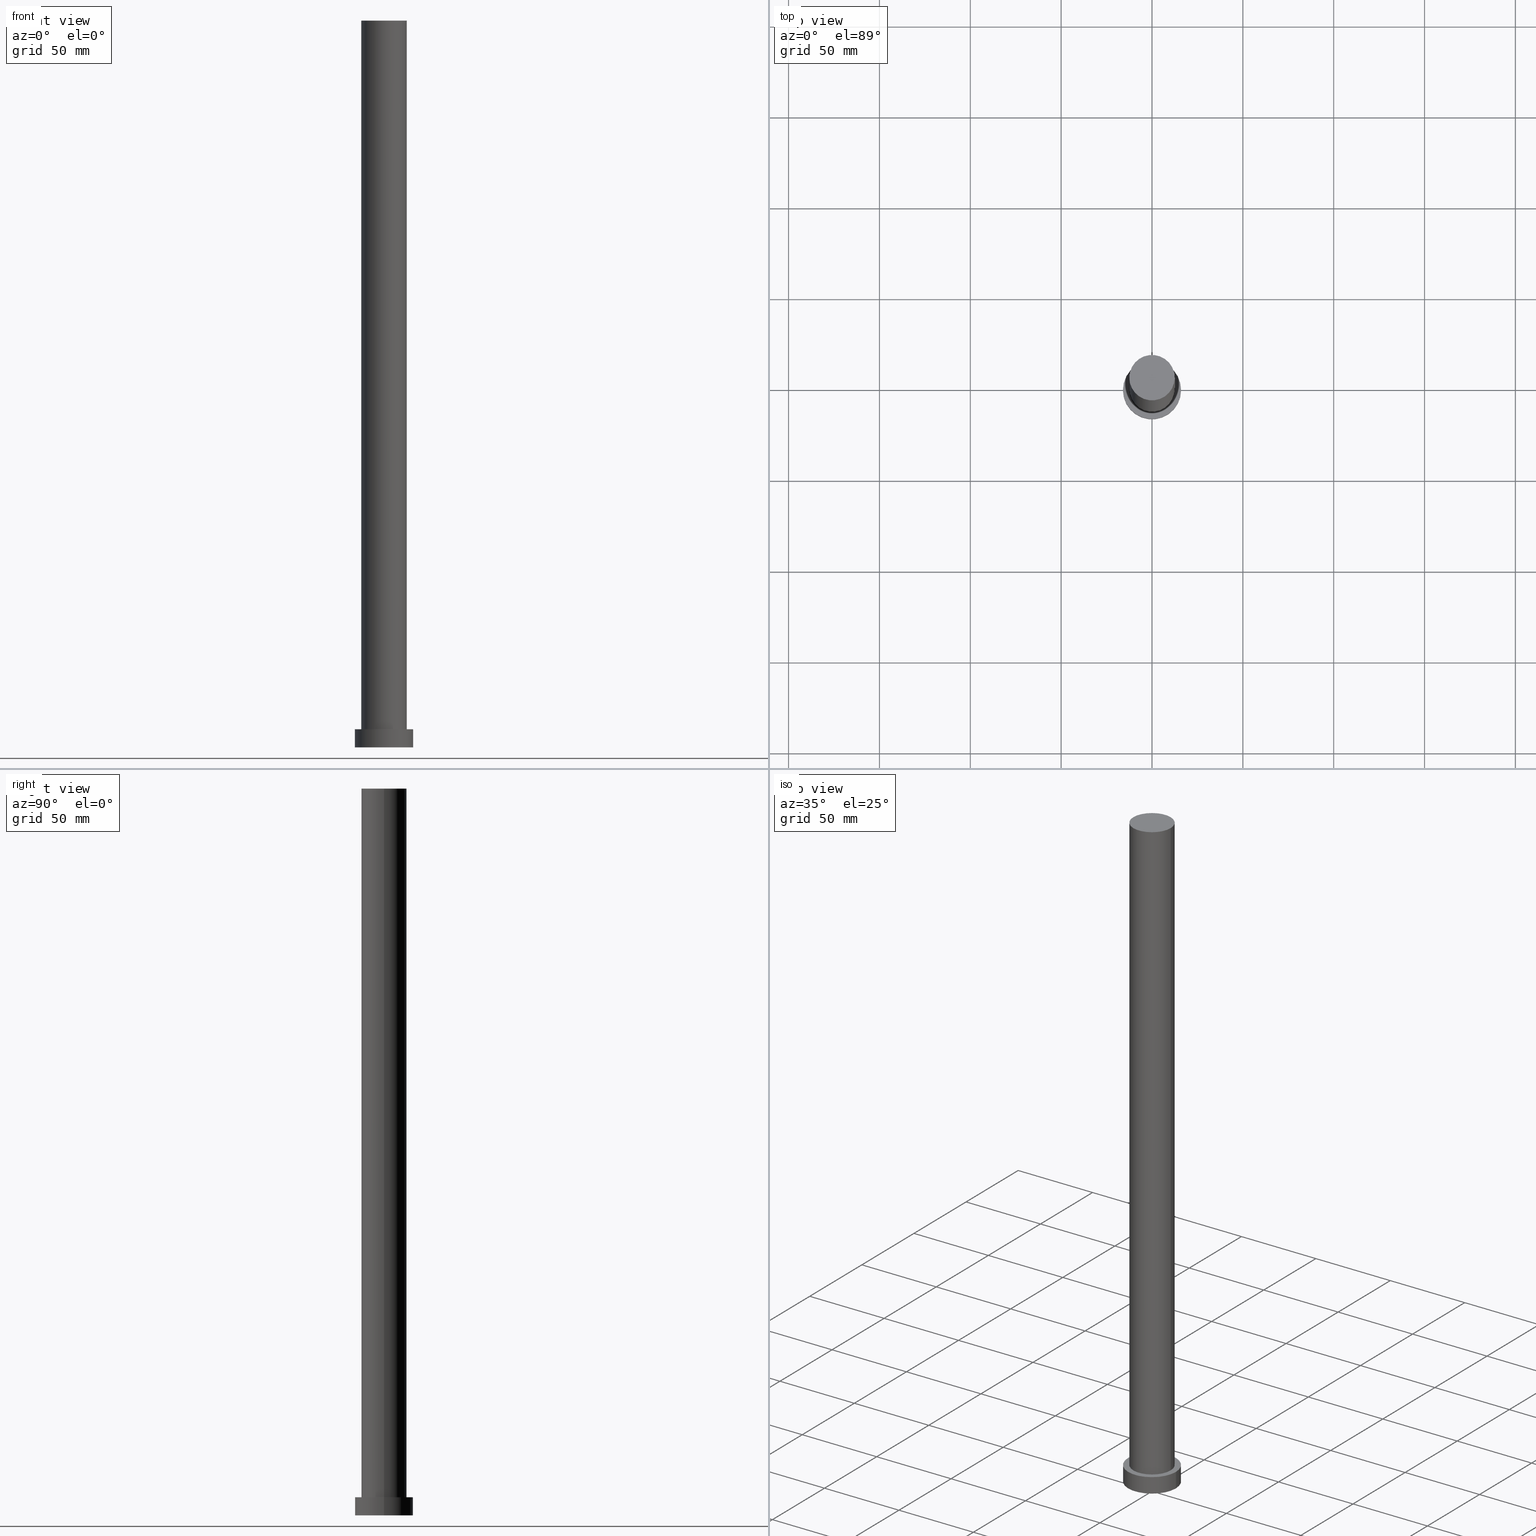
[diagram: canonical four-view strip — front | top / right | iso, engineering-drawing reading convention]
A machine part, canonical four-view strip (front | top / right | iso — engineering-drawing reading convention). The complete STEP part file that produces these views, byte-faithful:
ISO-10303-21;
HEADER;
FILE_DESCRIPTION (( 'STEP AP203' ),
    '1' );
FILE_NAME ('c39b.STEP',
    '2023-02-12T10:28:45',
    ( '' ),
    ( '' ),
    'SwSTEP 2.0',
    'SolidWorks 2019',
    '' );
FILE_SCHEMA (( 'CONFIG_CONTROL_DESIGN' ));
ENDSEC;

DATA;
#1 = ORIENTED_EDGE ( 'NONE', *, *, #134, .F. ) ;
#2 = EDGE_CURVE ( 'NONE', #248, #158, #169, .T. ) ;
#3 = APPROVAL_ROLE ( '' ) ;
#4 = ORIENTED_EDGE ( 'NONE', *, *, #129, .T. ) ;
#5 =( GEOMETRIC_REPRESENTATION_CONTEXT ( 3 ) GLOBAL_UNCERTAINTY_ASSIGNED_CONTEXT ( ( #172 ) ) GLOBAL_UNIT_ASSIGNED_CONTEXT ( ( #126, #39, #219 ) ) REPRESENTATION_CONTEXT ( 'NONE', 'WORKASPACE' ) );
#6 = DIRECTION ( 'NONE',  ( 1.000000000000000000, 0.000000000000000000, -0.000000000000000000 ) ) ;
#7 = APPROVAL_DATE_TIME ( #63, #14 ) ;
#8 = DIRECTION ( 'NONE',  ( 0.000000000000000000, 0.000000000000000000, 1.000000000000000000 ) ) ;
#9 = DIRECTION ( 'NONE',  ( 0.000000000000000000, 0.000000000000000000, 1.000000000000000000 ) ) ;
#10 = EDGE_CURVE ( 'NONE', #148, #158, #26, .T. ) ;
#11 = VERTEX_POINT ( 'NONE', #121 ) ;
#12 = ORIENTED_EDGE ( 'NONE', *, *, #147, .F. ) ;
#13 = DESIGN_CONTEXT ( 'detailed design', #137, 'design' ) ;
#14 = APPROVAL ( #138, 'NEUR�EN�' ) ;
#15 = DIRECTION ( 'NONE',  ( 1.000000000000000000, 0.000000000000000000, 0.000000000000000000 ) ) ;
#16 = DIRECTION ( 'NONE',  ( 1.000000000000000000, 0.000000000000000000, 0.000000000000000000 ) ) ;
#17 = DIRECTION ( 'NONE',  ( -1.000000000000000000, 0.000000000000000000, 0.000000000000000000 ) ) ;
#18 = LOCAL_TIME ( 11, 28, 45.00000000000000000, #40 ) ;
#19 = CC_DESIGN_PERSON_AND_ORGANIZATION_ASSIGNMENT ( #133, #115, ( #120 ) ) ;
#20 = ORIENTED_EDGE ( 'NONE', *, *, #47, .F. ) ;
#21 = PRODUCT ( 'c39b', 'c39b', '', ( #182 ) ) ;
#22 = ORIENTED_EDGE ( 'NONE', *, *, #79, .T. ) ;
#23 = PERSON_AND_ORGANIZATION_ROLE ( 'design_owner' ) ;
#24 = CARTESIAN_POINT ( 'NONE',  ( 0.000000000000000000, 0.000000000000000000, 400.0000000000000000 ) ) ;
#25 = VERTEX_POINT ( 'NONE', #170 ) ;
#26 = CIRCLE ( 'NONE', #54, 12.50000000000000000 ) ;
#27 = DIRECTION ( 'NONE',  ( -0.000000000000000000, -0.000000000000000000, -1.000000000000000000 ) ) ;
#28 = EDGE_CURVE ( 'NONE', #193, #246, #208, .T. ) ;
#29 = AXIS2_PLACEMENT_3D ( 'NONE', #200, #253, #199 ) ;
#30 = ORIENTED_EDGE ( 'NONE', *, *, #60, .T. ) ;
#31 = CARTESIAN_POINT ( 'NONE',  ( 0.000000000000000000, 0.000000000000000000, 10.00000000000000000 ) ) ;
#32 = AXIS2_PLACEMENT_3D ( 'NONE', #70, #151, #52 ) ;
#33 = DIRECTION ( 'NONE',  ( 0.000000000000000000, 0.000000000000000000, 1.000000000000000000 ) ) ;
#34 = CC_DESIGN_PERSON_AND_ORGANIZATION_ASSIGNMENT ( #76, #23, ( #21 ) ) ;
#35 = CARTESIAN_POINT ( 'NONE',  ( 0.000000000000000000, 0.000000000000000000, 0.000000000000000000 ) ) ;
#36 = AXIS2_PLACEMENT_3D ( 'NONE', #91, #33, #109 ) ;
#37 = LINE ( 'NONE', #125, #116 ) ;
#38 = DIRECTION ( 'NONE',  ( -0.000000000000000000, -0.000000000000000000, -1.000000000000000000 ) ) ;
#39 =( NAMED_UNIT ( * ) PLANE_ANGLE_UNIT ( ) SI_UNIT ( $, .RADIAN. ) );
#40 = COORDINATED_UNIVERSAL_TIME_OFFSET ( 1, 0, .AHEAD. ) ;
#41 = CC_DESIGN_PERSON_AND_ORGANIZATION_ASSIGNMENT ( #59, #177, ( #107 ) ) ;
#42 = EDGE_LOOP ( 'NONE', ( #181, #65 ) ) ;
#43 = FACE_OUTER_BOUND ( 'NONE', #139, .T. ) ;
#44 = PLANE ( 'NONE',  #160 ) ;
#45 = MANIFOLD_SOLID_BREP ( 'P�idat vysunut�m3', #132 ) ;
#46 = ORIENTED_EDGE ( 'NONE', *, *, #28, .T. ) ;
#47 = EDGE_CURVE ( 'NONE', #158, #148, #207, .T. ) ;
#48 = DIRECTION ( 'NONE',  ( 0.000000000000000000, 0.000000000000000000, 1.000000000000000000 ) ) ;
#49 = ORIENTED_EDGE ( 'NONE', *, *, #161, .T. ) ;
#50 = DIRECTION ( 'NONE',  ( 1.000000000000000000, 0.000000000000000000, 0.000000000000000000 ) ) ;
#51 = CARTESIAN_POINT ( 'NONE',  ( -16.00000000000000000, 0.000000000000000000, 0.000000000000000000 ) ) ;
#52 = DIRECTION ( 'NONE',  ( -1.000000000000000000, 0.000000000000000000, 0.000000000000000000 ) ) ;
#53 = CC_DESIGN_PERSON_AND_ORGANIZATION_ASSIGNMENT ( #223, #168, ( #120 ) ) ;
#54 = AXIS2_PLACEMENT_3D ( 'NONE', #218, #9, #249 ) ;
#55 = DIRECTION ( 'NONE',  ( 0.000000000000000000, 0.000000000000000000, 1.000000000000000000 ) ) ;
#56 = LOCAL_TIME ( 11, 28, 45.00000000000000000, #144 ) ;
#57 = APPROVAL_DATE_TIME ( #155, #245 ) ;
#58 = CALENDAR_DATE ( 2023, 12, 2 ) ;
#59 = PERSON_AND_ORGANIZATION ( #154, #171 ) ;
#60 = EDGE_CURVE ( 'NONE', #246, #193, #237, .T. ) ;
#61 = COORDINATED_UNIVERSAL_TIME_OFFSET ( 1, 0, .AHEAD. ) ;
#62 = CARTESIAN_POINT ( 'NONE',  ( 0.000000000000000000, 0.000000000000000000, 0.000000000000000000 ) ) ;
#63 = DATE_AND_TIME ( #216, #56 ) ;
#64 = DIRECTION ( 'NONE',  ( 1.000000000000000000, 0.000000000000000000, 0.000000000000000000 ) ) ;
#65 = ORIENTED_EDGE ( 'NONE', *, *, #28, .F. ) ;
#66 = DATE_TIME_ROLE ( 'classification_date' ) ;
#67 = EDGE_LOOP ( 'NONE', ( #131, #75, #46, #124 ) ) ;
#68 = APPROVAL_PERSON_ORGANIZATION ( #166, #14, #140 ) ;
#69 = DIRECTION ( 'NONE',  ( 1.000000000000000000, 0.000000000000000000, -0.000000000000000000 ) ) ;
#70 = CARTESIAN_POINT ( 'NONE',  ( 0.000000000000000000, 0.000000000000000000, 400.0000000000000000 ) ) ;
#71 = DIRECTION ( 'NONE',  ( -0.000000000000000000, -0.000000000000000000, -1.000000000000000000 ) ) ;
#72 = CARTESIAN_POINT ( 'NONE',  ( -12.50000000000000000, 0.000000000000000000, 400.0000000000000000 ) ) ;
#73 = CARTESIAN_POINT ( 'NONE',  ( -12.50000000000000000, 0.000000000000000000, 10.00000000000000000 ) ) ;
#74 = CALENDAR_DATE ( 2023, 12, 2 ) ;
#75 = ORIENTED_EDGE ( 'NONE', *, *, #147, .T. ) ;
#76 = PERSON_AND_ORGANIZATION ( #154, #171 ) ;
#77 = DATE_AND_TIME ( #113, #18 ) ;
#78 = ORIENTED_EDGE ( 'NONE', *, *, #161, .F. ) ;
#79 = EDGE_CURVE ( 'NONE', #11, #246, #88, .T. ) ;
#80 = AXIS2_PLACEMENT_3D ( 'NONE', #35, #196, #205 ) ;
#81 = DIRECTION ( 'NONE',  ( -0.000000000000000000, -0.000000000000000000, -1.000000000000000000 ) ) ;
#82 = ADVANCED_FACE ( 'NONE', ( #85 ), #142, .T. ) ;
#83 = AXIS2_PLACEMENT_3D ( 'NONE', #252, #71, #17 ) ;
#84 = ORIENTED_EDGE ( 'NONE', *, *, #134, .T. ) ;
#85 = FACE_OUTER_BOUND ( 'NONE', #123, .T. ) ;
#86 = AXIS2_PLACEMENT_3D ( 'NONE', #31, #191, #64 ) ;
#87 = VERTEX_POINT ( 'NONE', #250 ) ;
#88 = LINE ( 'NONE', #145, #118 ) ;
#89 = ADVANCED_FACE ( 'NONE', ( #43 ), #229, .T. ) ;
#90 = CYLINDRICAL_SURFACE ( 'NONE', #32, 12.50000000000000000 ) ;
#91 = CARTESIAN_POINT ( 'NONE',  ( 0.000000000000000000, 0.000000000000000000, 10.00000000000000000 ) ) ;
#92 = CARTESIAN_POINT ( 'NONE',  ( 12.50000000000000000, 1.530808498934191521E-15, 10.00000000000000000 ) ) ;
#93 = FACE_OUTER_BOUND ( 'NONE', #167, .T. ) ;
#94 = CIRCLE ( 'NONE', #234, 12.50000000000000000 ) ;
#95 = PERSON_AND_ORGANIZATION ( #154, #171 ) ;
#96 = EDGE_LOOP ( 'NONE', ( #1, #4, #206, #119 ) ) ;
#97 = AXIS2_PLACEMENT_3D ( 'NONE', #127, #198, #16 ) ;
#98 = ADVANCED_FACE ( 'NONE', ( #188, #228 ), #44, .T. ) ;
#99 = AXIS2_PLACEMENT_3D ( 'NONE', #152, #235, #15 ) ;
#100 = DIRECTION ( 'NONE',  ( 0.000000000000000000, 0.000000000000000000, 1.000000000000000000 ) ) ;
#101 = AXIS2_PLACEMENT_3D ( 'NONE', #194, #226, #213 ) ;
#102 = CARTESIAN_POINT ( 'NONE',  ( 0.000000000000000000, 0.000000000000000000, 0.000000000000000000 ) ) ;
#103 = PERSON_AND_ORGANIZATION ( #154, #171 ) ;
#104 = ORIENTED_EDGE ( 'NONE', *, *, #225, .T. ) ;
#105 = FACE_OUTER_BOUND ( 'NONE', #96, .T. ) ;
#106 = VECTOR ( 'NONE', #38, 1000.000000000000000 ) ;
#107 = PRODUCT_DEFINITION ( 'NEZN�M�', '', #120, #13 ) ;
#108 = DIRECTION ( 'NONE',  ( 1.000000000000000000, 0.000000000000000000, 0.000000000000000000 ) ) ;
#109 = DIRECTION ( 'NONE',  ( 1.000000000000000000, 0.000000000000000000, 0.000000000000000000 ) ) ;
#110 = DIRECTION ( 'NONE',  ( -0.000000000000000000, -0.000000000000000000, -1.000000000000000000 ) ) ;
#111 = CARTESIAN_POINT ( 'NONE',  ( 12.50000000000000000, 1.530808498934191521E-15, 400.0000000000000000 ) ) ;
#112 = DIRECTION ( 'NONE',  ( 0.000000000000000000, 0.000000000000000000, 1.000000000000000000 ) ) ;
#113 = CALENDAR_DATE ( 2023, 12, 2 ) ;
#114 = ORIENTED_EDGE ( 'NONE', *, *, #189, .T. ) ;
#115 = PERSON_AND_ORGANIZATION_ROLE ( 'creator' ) ;
#116 = VECTOR ( 'NONE', #110, 1000.000000000000000 ) ;
#117 = ADVANCED_FACE ( 'NONE', ( #105 ), #90, .T. ) ;
#118 = VECTOR ( 'NONE', #27, 1000.000000000000000 ) ;
#119 = ORIENTED_EDGE ( 'NONE', *, *, #2, .F. ) ;
#120 = PRODUCT_DEFINITION_FORMATION_WITH_SPECIFIED_SOURCE ( 'LIBOVOLN�', '', #21, .NOT_KNOWN. ) ;
#121 = CARTESIAN_POINT ( 'NONE',  ( -16.00000000000000000, 0.000000000000000000, 10.00000000000000000 ) ) ;
#122 = ORIENTED_EDGE ( 'NONE', *, *, #129, .F. ) ;
#123 = EDGE_LOOP ( 'NONE', ( #12, #231, #22, #30 ) ) ;
#124 = ORIENTED_EDGE ( 'NONE', *, *, #79, .F. ) ;
#125 = CARTESIAN_POINT ( 'NONE',  ( 16.00000000000000000, 1.959434878635765131E-15, 10.00000000000000000 ) ) ;
#126 =( LENGTH_UNIT ( ) NAMED_UNIT ( * ) SI_UNIT ( .MILLI., .METRE. ) );
#127 = CARTESIAN_POINT ( 'NONE',  ( 0.000000000000000000, 0.000000000000000000, 10.00000000000000000 ) ) ;
#128 = FACE_OUTER_BOUND ( 'NONE', #67, .T. ) ;
#129 = EDGE_CURVE ( 'NONE', #25, #148, #251, .T. ) ;
#130 = CC_DESIGN_APPROVAL ( #195, ( #107 ) ) ;
#131 = ORIENTED_EDGE ( 'NONE', *, *, #225, .F. ) ;
#132 = CLOSED_SHELL ( 'NONE', ( #117, #214, #82, #98, #178, #153, #89 ) ) ;
#133 = PERSON_AND_ORGANIZATION ( #154, #171 ) ;
#134 = EDGE_CURVE ( 'NONE', #25, #248, #94, .T. ) ;
#135 = CIRCLE ( 'NONE', #36, 16.00000000000000000 ) ;
#136 = COORDINATED_UNIVERSAL_TIME_OFFSET ( 1, 0, .AHEAD. ) ;
#137 = APPLICATION_CONTEXT ( 'configuration controlled 3d designs of mechanical parts and assemblies' ) ;
#138 = APPROVAL_STATUS ( 'not_yet_approved' ) ;
#139 = EDGE_LOOP ( 'NONE', ( #49, #84 ) ) ;
#140 = APPROVAL_ROLE ( '' ) ;
#141 = CC_DESIGN_DATE_AND_TIME_ASSIGNMENT ( #241, #209, ( #107 ) ) ;
#142 = CYLINDRICAL_SURFACE ( 'NONE', #101, 16.00000000000000000 ) ;
#143 = CC_DESIGN_SECURITY_CLASSIFICATION ( #180, ( #120 ) ) ;
#144 = COORDINATED_UNIVERSAL_TIME_OFFSET ( 1, 0, .AHEAD. ) ;
#145 = CARTESIAN_POINT ( 'NONE',  ( -16.00000000000000000, 0.000000000000000000, 10.00000000000000000 ) ) ;
#146 = CARTESIAN_POINT ( 'NONE',  ( -12.50000000000000000, 0.000000000000000000, 400.0000000000000000 ) ) ;
#147 = EDGE_CURVE ( 'NONE', #87, #193, #37, .T. ) ;
#148 = VERTEX_POINT ( 'NONE', #92 ) ;
#149 = CARTESIAN_POINT ( 'NONE',  ( 16.00000000000000000, 1.959434878635765131E-15, 0.000000000000000000 ) ) ;
#150 = APPLICATION_CONTEXT ( 'configuration controlled 3d designs of mechanical parts and assemblies' ) ;
#151 = DIRECTION ( 'NONE',  ( -0.000000000000000000, -0.000000000000000000, -1.000000000000000000 ) ) ;
#152 = CARTESIAN_POINT ( 'NONE',  ( 0.000000000000000000, 0.000000000000000000, 400.0000000000000000 ) ) ;
#153 = ADVANCED_FACE ( 'NONE', ( #93 ), #175, .T. ) ;
#154 = PERSON ( 'NEUR�EN�', 'NEUR�EN�', 'NEUR�EN�', ('NEUR�EN�'), ('NEUR�EN�'), ('NEUR�EN�') ) ;
#155 = DATE_AND_TIME ( #74, #240 ) ;
#156 = ORIENTED_EDGE ( 'NONE', *, *, #2, .T. ) ;
#157 = APPLICATION_PROTOCOL_DEFINITION ( 'international standard', 'config_control_design', 1994, #137 ) ;
#158 = VERTEX_POINT ( 'NONE', #73 ) ;
#159 = CC_DESIGN_APPROVAL ( #245, ( #120 ) ) ;
#160 = AXIS2_PLACEMENT_3D ( 'NONE', #230, #8, #217 ) ;
#161 = EDGE_CURVE ( 'NONE', #248, #25, #204, .T. ) ;
#162 = EDGE_LOOP ( 'NONE', ( #114, #104 ) ) ;
#163 = SECURITY_CLASSIFICATION_LEVEL ( 'unclassified' ) ;
#164 = ORIENTED_EDGE ( 'NONE', *, *, #10, .F. ) ;
#165 = LOCAL_TIME ( 11, 28, 45.00000000000000000, #136 ) ;
#166 = PERSON_AND_ORGANIZATION ( #154, #171 ) ;
#167 = EDGE_LOOP ( 'NONE', ( #122, #78, #156, #215 ) ) ;
#168 = PERSON_AND_ORGANIZATION_ROLE ( 'design_supplier' ) ;
#169 = LINE ( 'NONE', #146, #186 ) ;
#170 = CARTESIAN_POINT ( 'NONE',  ( 12.50000000000000000, 1.530808498934191521E-15, 400.0000000000000000 ) ) ;
#171 = ORGANIZATION ( 'NEUR�EN�', 'NEUR�EN�', '' ) ;
#172 = UNCERTAINTY_MEASURE_WITH_UNIT (LENGTH_MEASURE( 1.000000000000000082E-05 ), #126, 'distance_accuracy_value', 'NONE');
#173 = CARTESIAN_POINT ( 'NONE',  ( 0.000000000000000000, 0.000000000000000000, 400.0000000000000000 ) ) ;
#174 = CYLINDRICAL_SURFACE ( 'NONE', #29, 16.00000000000000000 ) ;
#175 = CYLINDRICAL_SURFACE ( 'NONE', #83, 12.50000000000000000 ) ;
#176 = FACE_OUTER_BOUND ( 'NONE', #42, .T. ) ;
#177 = PERSON_AND_ORGANIZATION_ROLE ( 'creator' ) ;
#178 = ADVANCED_FACE ( 'NONE', ( #176 ), #238, .F. ) ;
#179 = PERSON_AND_ORGANIZATION ( #154, #171 ) ;
#180 = SECURITY_CLASSIFICATION ( '', '', #163 ) ;
#181 = ORIENTED_EDGE ( 'NONE', *, *, #60, .F. ) ;
#182 = MECHANICAL_CONTEXT ( 'NONE', #150, 'mechanical' ) ;
#183 = APPROVAL_PERSON_ORGANIZATION ( #95, #195, #3 ) ;
#184 = PRODUCT_RELATED_PRODUCT_CATEGORY ( 'detail', '', ( #21 ) ) ;
#185 = DIRECTION ( 'NONE',  ( 0.000000000000000000, 0.000000000000000000, 1.000000000000000000 ) ) ;
#186 = VECTOR ( 'NONE', #81, 1000.000000000000000 ) ;
#187 = PERSON_AND_ORGANIZATION_ROLE ( 'classification_officer' ) ;
#188 = FACE_BOUND ( 'NONE', #247, .T. ) ;
#189 = EDGE_CURVE ( 'NONE', #11, #87, #220, .T. ) ;
#190 = DATE_AND_TIME ( #210, #192 ) ;
#191 = DIRECTION ( 'NONE',  ( 0.000000000000000000, 0.000000000000000000, 1.000000000000000000 ) ) ;
#192 = LOCAL_TIME ( 11, 28, 45.00000000000000000, #61 ) ;
#193 = VERTEX_POINT ( 'NONE', #149 ) ;
#194 = CARTESIAN_POINT ( 'NONE',  ( 0.000000000000000000, 0.000000000000000000, 10.00000000000000000 ) ) ;
#195 = APPROVAL ( #203, 'NEUR�EN�' ) ;
#196 = DIRECTION ( 'NONE',  ( 0.000000000000000000, 0.000000000000000000, 1.000000000000000000 ) ) ;
#197 = AXIS2_PLACEMENT_3D ( 'NONE', #62, #48, #211 ) ;
#198 = DIRECTION ( 'NONE',  ( 0.000000000000000000, 0.000000000000000000, 1.000000000000000000 ) ) ;
#199 = DIRECTION ( 'NONE',  ( -1.000000000000000000, 0.000000000000000000, 0.000000000000000000 ) ) ;
#200 = CARTESIAN_POINT ( 'NONE',  ( 0.000000000000000000, 0.000000000000000000, 10.00000000000000000 ) ) ;
#201 = APPROVAL_ROLE ( '' ) ;
#202 = AXIS2_PLACEMENT_3D ( 'NONE', #24, #185, #6 ) ;
#203 = APPROVAL_STATUS ( 'not_yet_approved' ) ;
#204 = CIRCLE ( 'NONE', #99, 12.50000000000000000 ) ;
#205 = DIRECTION ( 'NONE',  ( 1.000000000000000000, 0.000000000000000000, 0.000000000000000000 ) ) ;
#206 = ORIENTED_EDGE ( 'NONE', *, *, #10, .T. ) ;
#207 = CIRCLE ( 'NONE', #86, 12.50000000000000000 ) ;
#208 = CIRCLE ( 'NONE', #222, 16.00000000000000000 ) ;
#209 = DATE_TIME_ROLE ( 'creation_date' ) ;
#210 = CALENDAR_DATE ( 2023, 12, 2 ) ;
#211 = DIRECTION ( 'NONE',  ( 1.000000000000000000, 0.000000000000000000, 0.000000000000000000 ) ) ;
#212 = APPROVAL_PERSON_ORGANIZATION ( #179, #245, #201 ) ;
#213 = DIRECTION ( 'NONE',  ( -1.000000000000000000, 0.000000000000000000, 0.000000000000000000 ) ) ;
#214 = ADVANCED_FACE ( 'NONE', ( #128 ), #174, .T. ) ;
#215 = ORIENTED_EDGE ( 'NONE', *, *, #47, .T. ) ;
#216 = CALENDAR_DATE ( 2023, 12, 2 ) ;
#217 = DIRECTION ( 'NONE',  ( 1.000000000000000000, 0.000000000000000000, -0.000000000000000000 ) ) ;
#218 = CARTESIAN_POINT ( 'NONE',  ( 0.000000000000000000, 0.000000000000000000, 10.00000000000000000 ) ) ;
#219 =( NAMED_UNIT ( * ) SI_UNIT ( $, .STERADIAN. ) SOLID_ANGLE_UNIT ( ) );
#220 = CIRCLE ( 'NONE', #97, 16.00000000000000000 ) ;
#221 = APPLICATION_PROTOCOL_DEFINITION ( 'international standard', 'config_control_design', 1994, #150 ) ;
#222 = AXIS2_PLACEMENT_3D ( 'NONE', #102, #100, #108 ) ;
#223 = PERSON_AND_ORGANIZATION ( #154, #171 ) ;
#224 = CC_DESIGN_APPROVAL ( #14, ( #180 ) ) ;
#225 = EDGE_CURVE ( 'NONE', #87, #11, #135, .T. ) ;
#226 = DIRECTION ( 'NONE',  ( -0.000000000000000000, -0.000000000000000000, -1.000000000000000000 ) ) ;
#227 = SHAPE_DEFINITION_REPRESENTATION ( #244, #254 ) ;
#228 = FACE_OUTER_BOUND ( 'NONE', #162, .T. ) ;
#229 = PLANE ( 'NONE',  #202 ) ;
#230 = CARTESIAN_POINT ( 'NONE',  ( 0.000000000000000000, 0.000000000000000000, 10.00000000000000000 ) ) ;
#231 = ORIENTED_EDGE ( 'NONE', *, *, #189, .F. ) ;
#232 = AXIS2_PLACEMENT_3D ( 'NONE', #236, #55, #69 ) ;
#233 = CC_DESIGN_DATE_AND_TIME_ASSIGNMENT ( #190, #66, ( #180 ) ) ;
#234 = AXIS2_PLACEMENT_3D ( 'NONE', #173, #112, #50 ) ;
#235 = DIRECTION ( 'NONE',  ( 0.000000000000000000, 0.000000000000000000, 1.000000000000000000 ) ) ;
#236 = CARTESIAN_POINT ( 'NONE',  ( 0.000000000000000000, 0.000000000000000000, 0.000000000000000000 ) ) ;
#237 = CIRCLE ( 'NONE', #197, 16.00000000000000000 ) ;
#238 = PLANE ( 'NONE',  #232 ) ;
#239 = APPROVAL_STATUS ( 'not_yet_approved' ) ;
#240 = LOCAL_TIME ( 11, 28, 45.00000000000000000, #255 ) ;
#241 = DATE_AND_TIME ( #58, #165 ) ;
#242 = CC_DESIGN_PERSON_AND_ORGANIZATION_ASSIGNMENT ( #103, #187, ( #180 ) ) ;
#243 = APPROVAL_DATE_TIME ( #77, #195 ) ;
#244 = PRODUCT_DEFINITION_SHAPE ( 'NONE', 'NONE',  #107 ) ;
#245 = APPROVAL ( #239, 'NEUR�EN�' ) ;
#246 = VERTEX_POINT ( 'NONE', #51 ) ;
#247 = EDGE_LOOP ( 'NONE', ( #20, #164 ) ) ;
#248 = VERTEX_POINT ( 'NONE', #72 ) ;
#249 = DIRECTION ( 'NONE',  ( 1.000000000000000000, 0.000000000000000000, 0.000000000000000000 ) ) ;
#250 = CARTESIAN_POINT ( 'NONE',  ( 16.00000000000000000, 1.959434878635765131E-15, 10.00000000000000000 ) ) ;
#251 = LINE ( 'NONE', #111, #106 ) ;
#252 = CARTESIAN_POINT ( 'NONE',  ( 0.000000000000000000, 0.000000000000000000, 400.0000000000000000 ) ) ;
#253 = DIRECTION ( 'NONE',  ( -0.000000000000000000, -0.000000000000000000, -1.000000000000000000 ) ) ;
#254 = ADVANCED_BREP_SHAPE_REPRESENTATION ( 'c39b', ( #45, #80 ), #5 ) ;
#255 = COORDINATED_UNIVERSAL_TIME_OFFSET ( 1, 0, .AHEAD. ) ;
ENDSEC;
END-ISO-10303-21;
